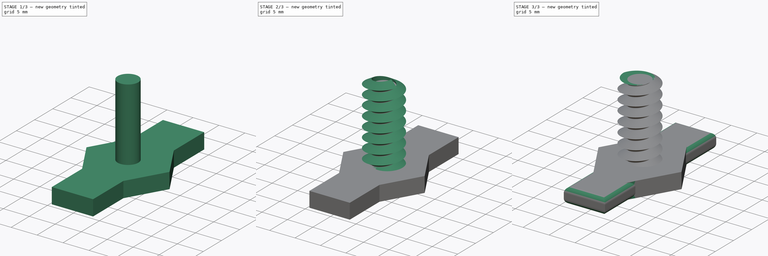
[diagram: build sequence overview — one tinted view per stage of 3, left to right]
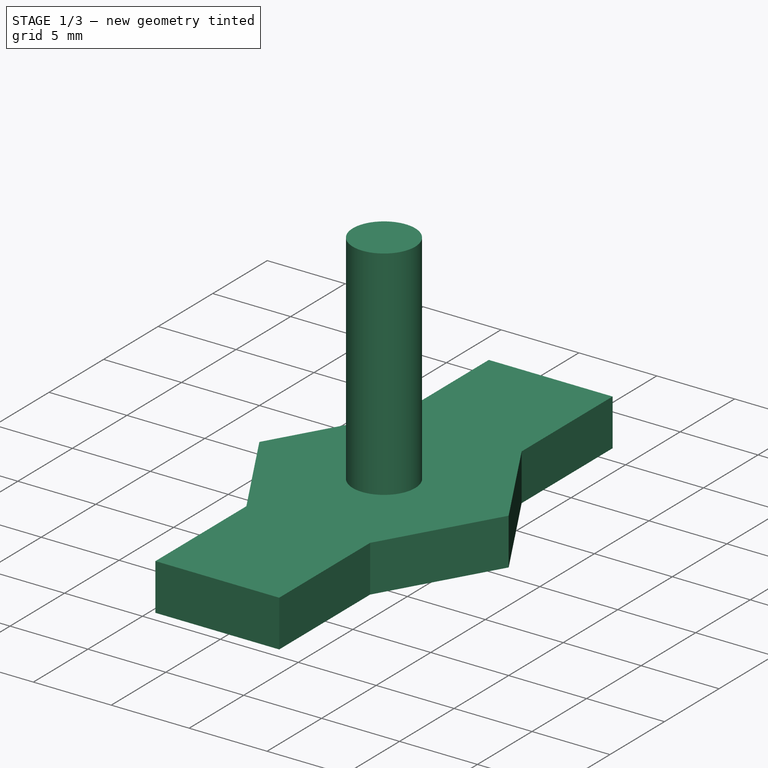
[diagram: stage 1 of 3 — iso view after this stage's code; geometry added in this stage tinted green]
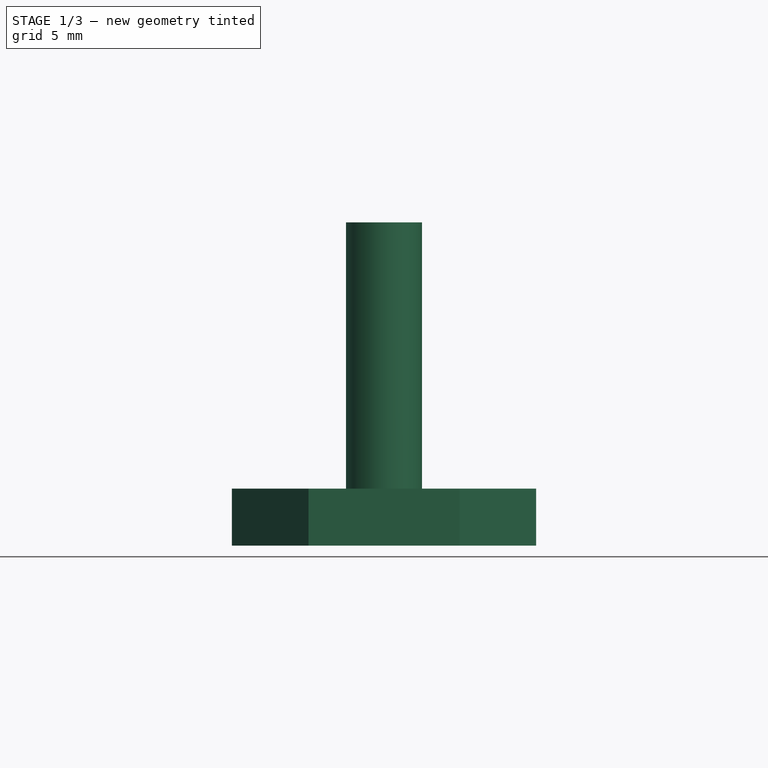
[diagram: stage 1 of 3 — front view after this stage's code; geometry added in this stage tinted green]
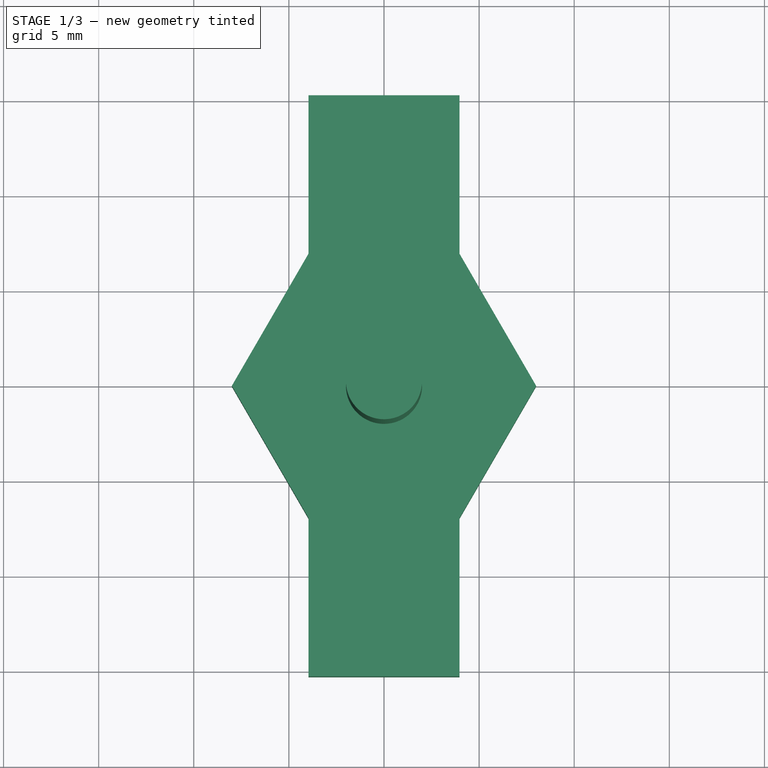
[diagram: stage 1 of 3 — top view after this stage's code; geometry added in this stage tinted green]
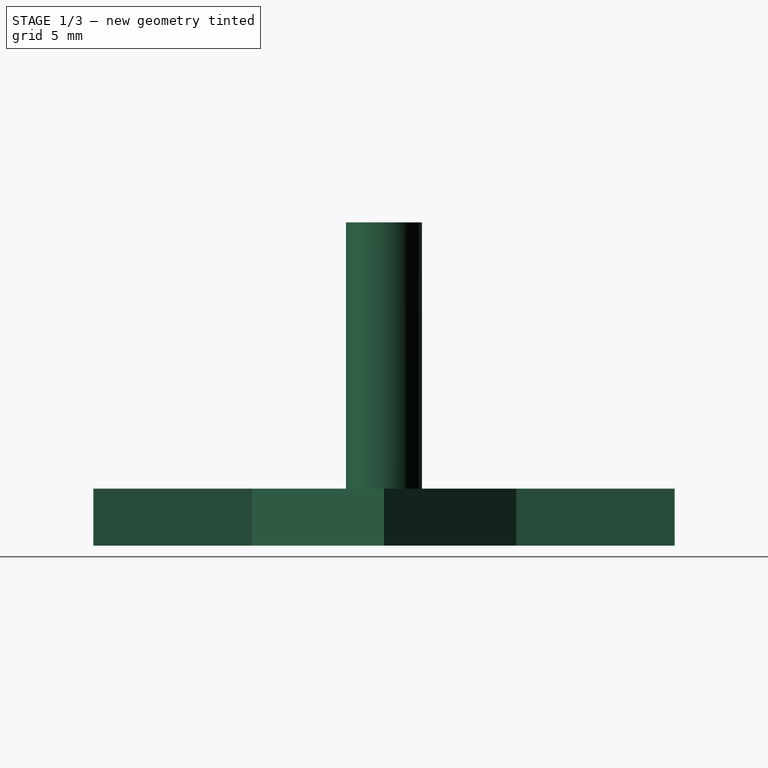
[diagram: stage 1 of 3 — right view after this stage's code; geometry added in this stage tinted green]
FCSTD DOCUMENT  (FreeCAD 0.20R29177 (Git))
Label: screw2.5x1.9
License: All rights reserved
LicenseURL: http://en.wikipedia.org/wiki/All_rights_reserved
objects: Sketcher::SketchObject×4, PartDesign::Pad×2, Spreadsheet::Sheet×1, PartDesign::AdditiveHelix×1, PartDesign::Groove×1, PartDesign::Fillet×1, PartDesign::Body×1
note: 15 computed .brp shape members not serialized (recipe doc carries the construction recipe); baked Part::Feature solids carry a one-line shape summary decoded from their .brp

FEATURE [Sketcher::SketchObject] Sketch
  FullyConstrained = true
  MapMode = 5
  Support = -> [XY_Plane]
  expr: Constraints[1] = Spreadsheet.r
  sketch-geometry (1):
    g0: Circle CenterX=0 CenterY=0 CenterZ=0 NormalX=0 NormalY=0 NormalZ=1 AngleXU=0 Radius=2
  constraints (2):
    c: Coincident(g0,g-1)
    c: Radius(g0) = 2
FEATURE [PartDesign::Pad] Pad
  Direction = (0,0,1)
  Length = 17
  Length2 = 10
  Profile = -> Sketch
  ReferenceAxis = -> Sketch [N_Axis]
  Type = 0
  expr: Length = Spreadsheet.height
FEATURE [Sketcher::SketchObject] Sketch001
  FullyConstrained = false
  MapMode = 5
  Support = -> [XY_Plane]
  expr: Constraints[12] = 8mm
  sketch-geometry (11):
    g0: LineSegment StartX=3.97156 StartY=-6.94455 StartZ=0 EndX=8 EndY=0 EndZ=0
    g1: LineSegment StartX=8 StartY=0 StartZ=0 EndX=3.97156 EndY=6.94455 EndZ=0
    g2: LineSegment StartX=-3.97156 StartY=6.94455 StartZ=0 EndX=-8 EndY=0 EndZ=0
    g3: LineSegment StartX=-8 StartY=0 StartZ=0 EndX=-3.97156 EndY=-6.94455 EndZ=0
    g4: Circle CenterX=0 CenterY=0 CenterZ=0 NormalX=0 NormalY=0 NormalZ=1 AngleXU=0 Radius=8
    g5: LineSegment StartX=3.97156 StartY=-6.94455 StartZ=0 EndX=3.97156 EndY=-15.2778 EndZ=0
    g6: LineSegment StartX=3.97156 StartY=-15.2778 StartZ=0 EndX=-3.97156 EndY=-15.2778 EndZ=0
    g7: LineSegment StartX=-3.97156 StartY=-15.2778 StartZ=0 EndX=-3.97156 EndY=-6.94455 EndZ=0
    g8: LineSegment StartX=3.97156 StartY=6.94455 StartZ=0 EndX=3.97156 EndY=15.2778 EndZ=0
    g9: LineSegment StartX=3.97156 StartY=15.2778 StartZ=0 EndX=-3.97156 EndY=15.2778 EndZ=0
    g10: LineSegment StartX=-3.97156 StartY=15.2778 StartZ=0 EndX=-3.97156 EndY=6.94455 EndZ=0
  constraints (30):
    c: Coincident(g0,g1)
    c: Coincident(g2,g3)
    c: Equal(g0,g1)
    c: Equal(g0,g2)
    c: Equal(g0,g3)
    c: PointOnObject(g0,g4)
    c: PointOnObject(g1,g4)
    c: PointOnObject(g2,g4)
    c: PointOnObject(g2,g4)
    c: PointOnObject(g3,g4)
    c: PointOnObject(g0,g4)
    c: Coincident(g4,g-1)
    c: Radius(g4) = 8
    c: Coincident(g5,g6)
    c: Coincident(g6,g7)
    c: Horizontal(g6)
    c: Vertical(g5)
    c: Vertical(g7)
    c: Coincident(g7,g3)
    c: Coincident(g8,g9)
    c: Coincident(g9,g10)
    c: Horizontal(g9)
    c: Vertical(g8)
    c: Vertical(g10)
    c: PointOnObject(g0,g-1)
    c: Coincident(g8,g1)
    c: Coincident(g10,g2)
    c: Coincident(g5,g0)
    c: PointOnObject(g2,g-1)
    c: Equal(g8,g5)
FEATURE [PartDesign::Pad] Pad001
  BaseFeature = -> Pad
  Direction = (0,0,1)
  Length = 3
  Length2 = 10
  Profile = -> Sketch001
  ReferenceAxis = -> Sketch001 [N_Axis]
  Type = 0
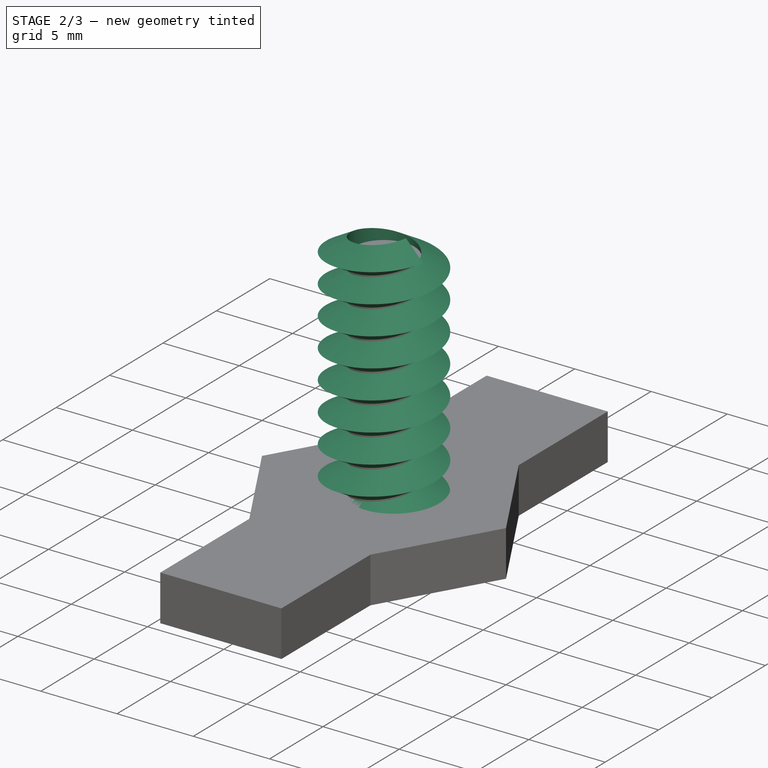
[diagram: stage 2 of 3 — iso view after this stage's code; geometry added in this stage tinted green]
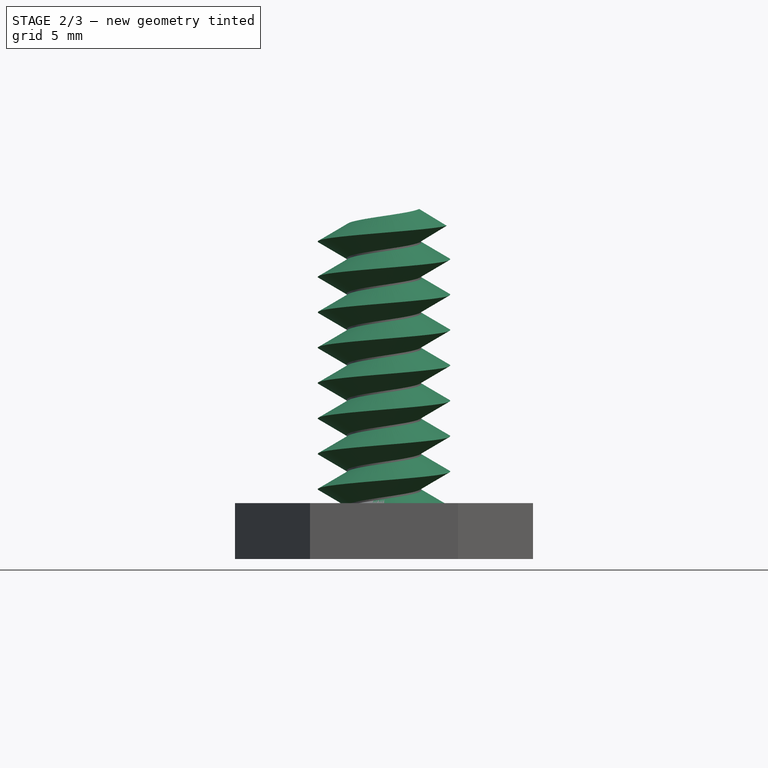
[diagram: stage 2 of 3 — front view after this stage's code; geometry added in this stage tinted green]
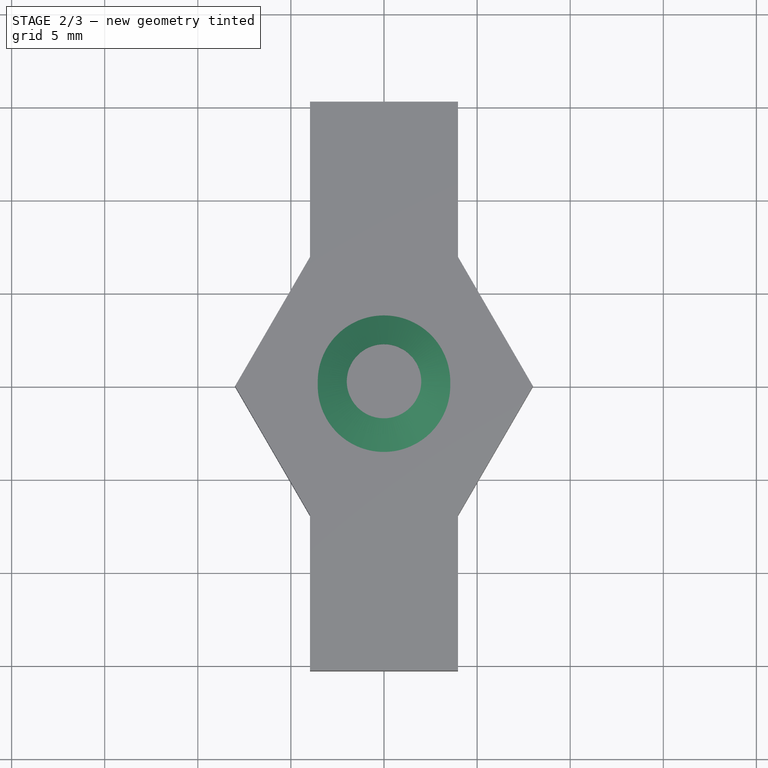
[diagram: stage 2 of 3 — top view after this stage's code; geometry added in this stage tinted green]
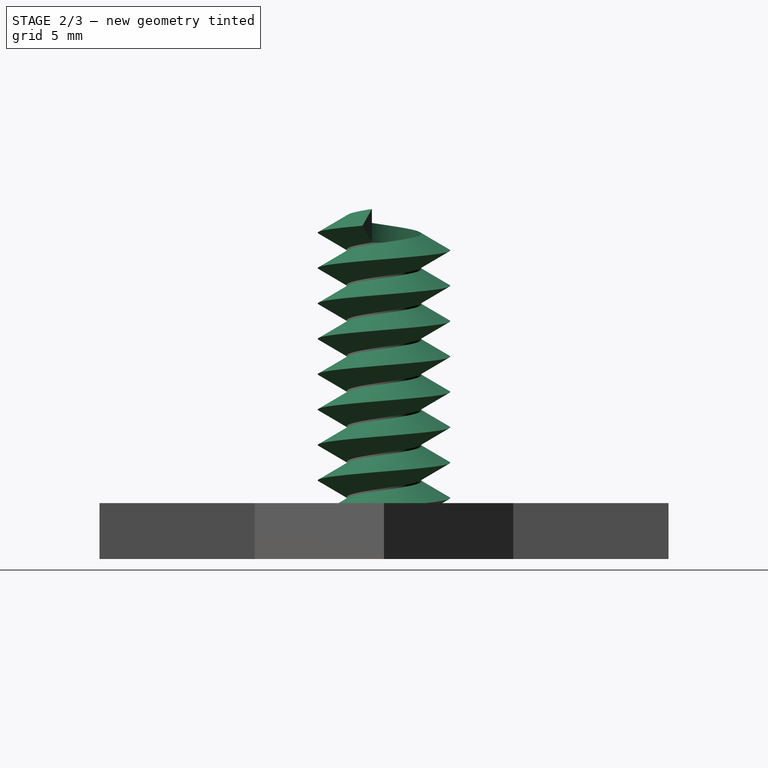
[diagram: stage 2 of 3 — right view after this stage's code; geometry added in this stage tinted green]
FEATURE [Sketcher::SketchObject] Sketch002  label="Sketch002Teeth"
  AttachmentOffset = pos=(0,0.9,0) rot=(0,0,1;0rad)
  FullyConstrained = true
  MapMode = 5
  Placement = pos=(0,-2e-16,0.9) rot=(1,0,0;1.5708rad)
  Support = -> [XZ_Plane]
  expr: .AttachmentOffset.Base.y = Spreadsheet.threadTriLen / 2
  expr: Constraints[6] = Spreadsheet.threadTriLen
  expr: Constraints[7] = Spreadsheet.threadTriLen / 2
  expr: Constraints[8] = Spreadsheet.r
  sketch-geometry (3):
    g0: LineSegment StartX=3.55885 StartY=1e-16 StartZ=0 EndX=2 EndY=0.9 EndZ=0
    g1: LineSegment StartX=2 StartY=0.9 StartZ=0 EndX=2 EndY=-0.9 EndZ=0
    g2: LineSegment StartX=2 StartY=-0.9 StartZ=0 EndX=3.55885 EndY=1e-16 EndZ=0
  constraints (9):
    c: Coincident(g1,g0)
    c: Coincident(g2,g1)
    c: Coincident(g2,g0)
    c: Equal(g1,g0)
    c: Equal(g1,g2)
    c: Parallel(g1,g-2)
    c: Distance(g0) = 1.8
    c: DistanceY(g-1,g0) = 0.9
    c: DistanceX(g-1,g0) = 2
FEATURE [Spreadsheet::Sheet] Spreadsheet
  cells = A2=threadTriLen; B2(threadTriLen)=1.8; A3=height; B3(height)=17; C3=was 14, too short for washing room, changed to 17; A4=r; B4(r)=2; C4=from 2.5 to 2.2 to 2.1; A5=pitch; B5(pitch)==B2 + 0.1
FEATURE [PartDesign::AdditiveHelix] AdditiveHelix
  Angle = 0
  Axis = (0,-2e-16,1)
  Base = (0,-2e-16,0.9)
  BaseFeature = -> Pad001
  Growth = 0
  HasBeenEdited = true
  Height = 17
  LeftHanded = false
  Mode = 0
  Outside = false
  Pitch = 1.9
  Profile = -> Sketch002
  ReferenceAxis = -> Sketch002 [V_Axis]
  Turns = 8.94737
  expr: Height = Spreadsheet.height
  expr: Pitch = Spreadsheet.pitch
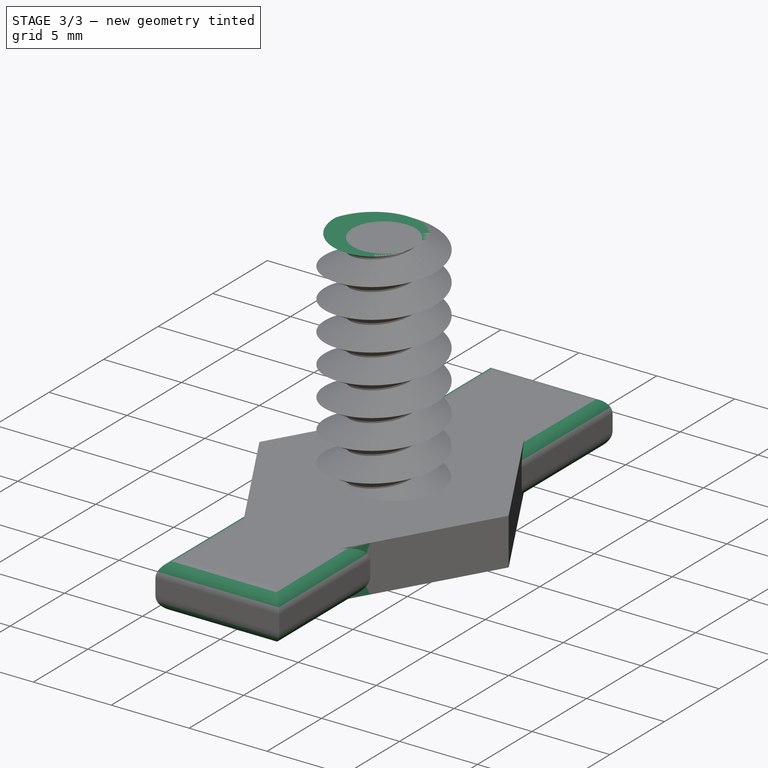
[diagram: stage 3 of 3 — iso view after this stage's code; geometry added in this stage tinted green]
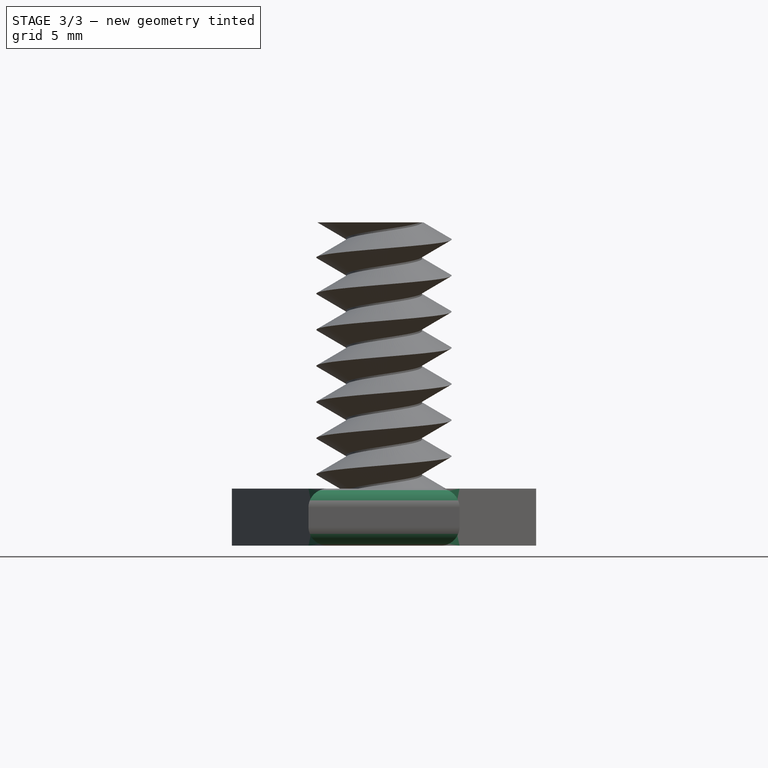
[diagram: stage 3 of 3 — front view after this stage's code; geometry added in this stage tinted green]
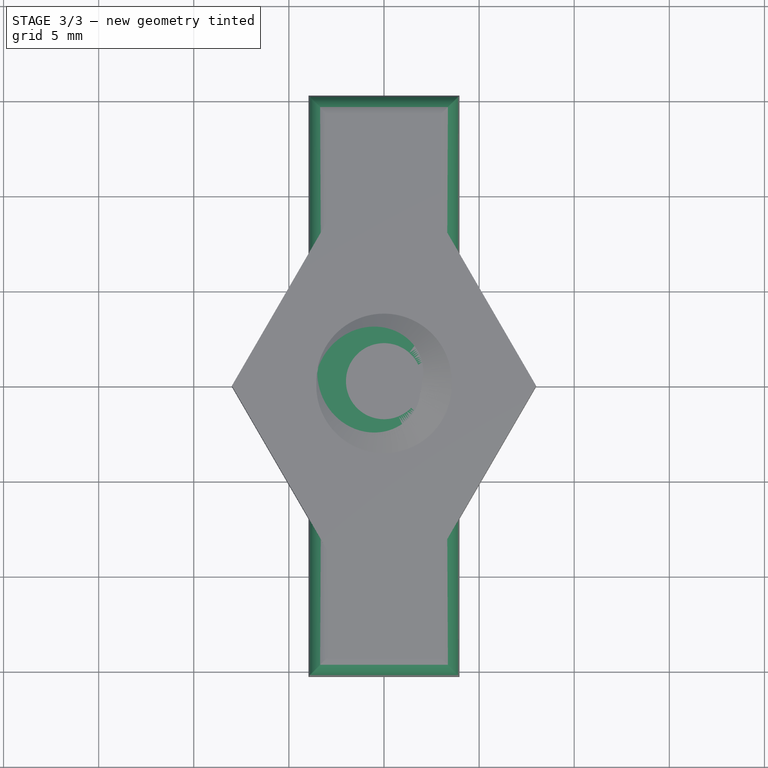
[diagram: stage 3 of 3 — top view after this stage's code; geometry added in this stage tinted green]
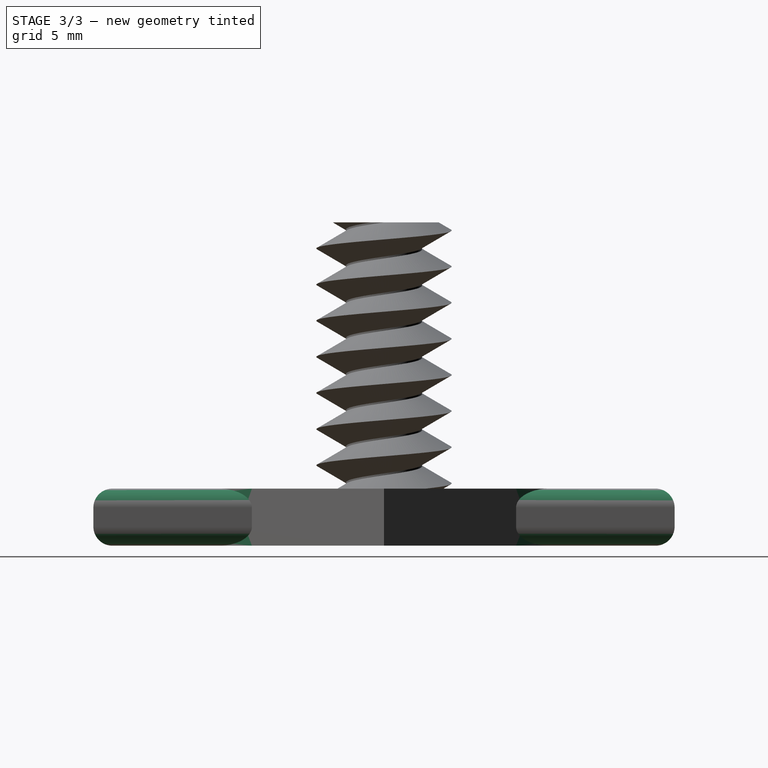
[diagram: stage 3 of 3 — right view after this stage's code; geometry added in this stage tinted green]
FEATURE [Sketcher::SketchObject] Sketch003  label="Sketch003TopCut"
  FullyConstrained = true
  MapMode = 5
  Placement = pos=(0,0,0) rot=(0.57735,0.57735,0.57735;2.0944rad)
  Support = -> [YZ_Plane]
  expr: Constraints[10] = Spreadsheet.height
  expr: Constraints[9] = Spreadsheet.r + 3
  sketch-geometry (4):
    g0: LineSegment StartX=0 StartY=20 StartZ=0 EndX=5 EndY=20 EndZ=0
    g1: LineSegment StartX=5 StartY=20 StartZ=0 EndX=5 EndY=17 EndZ=0
    g2: LineSegment StartX=5 StartY=17 StartZ=0 EndX=0 EndY=17 EndZ=0
    g3: LineSegment StartX=0 StartY=17 StartZ=0 EndX=0 EndY=20 EndZ=0
  constraints (12):
    c: Coincident(g0,g1)
    c: Coincident(g1,g2)
    c: Coincident(g2,g3)
    c: Coincident(g3,g0)
    c: Horizontal(g0)
    c: Horizontal(g2)
    c: Vertical(g1)
    c: Vertical(g3)
    c: DistanceY(g1,g1) = 3
    c: DistanceX(g-1,g1) = 5
    c: DistanceY(g-1,g1) = 17
    c: PointOnObject(g2,g-2)
FEATURE [PartDesign::Groove] Groove
  Angle = 360
  Axis = (-2e-16,3e-16,1)
  Base = (0,0,0)
  BaseFeature = -> AdditiveHelix
  Profile = -> Sketch003
  ReferenceAxis = -> Sketch003 [V_Axis]
FEATURE [PartDesign::Fillet] Fillet
  Base = -> Groove [Edge31,Edge11,Edge22,Edge6,Edge28,Edge9,Edge18,Edge4,Edge2,Edge14,Edge7,Edge24]
  BaseFeature = -> Groove
  Radius = 1
  SupportTransform = false
  UseAllEdges = false
FEATURE [PartDesign::Body] Body
  Group = -> [Sketch,Pad,Sketch001,Pad001,Sketch002,AdditiveHelix,Sketch003,Groove,Fillet]
  Origin = -> Origin
  Tip = -> Fillet
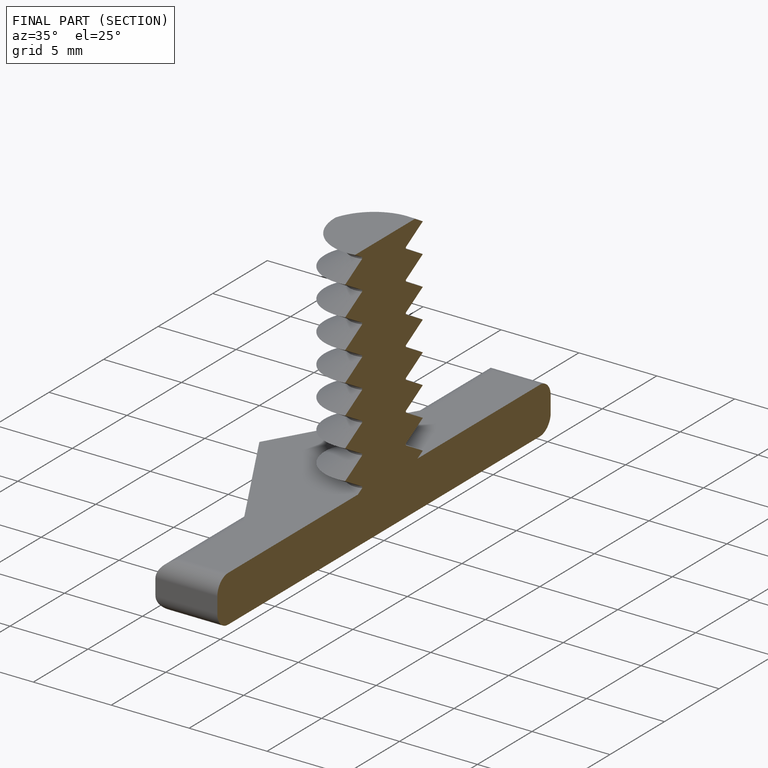
[diagram: finished part — half-section view (interior)]
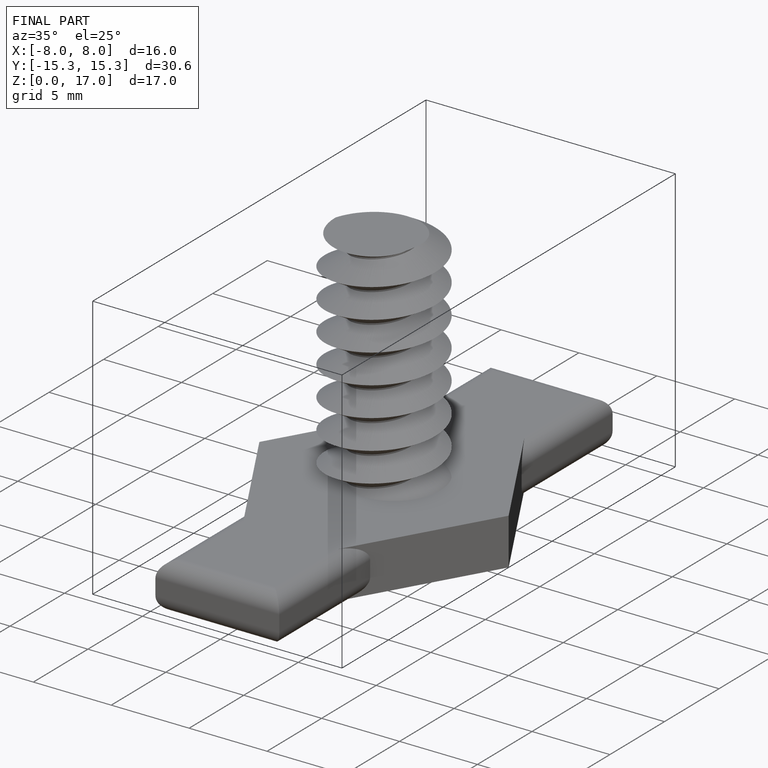
[diagram: finished part — iso view with bounding-box wireframe]
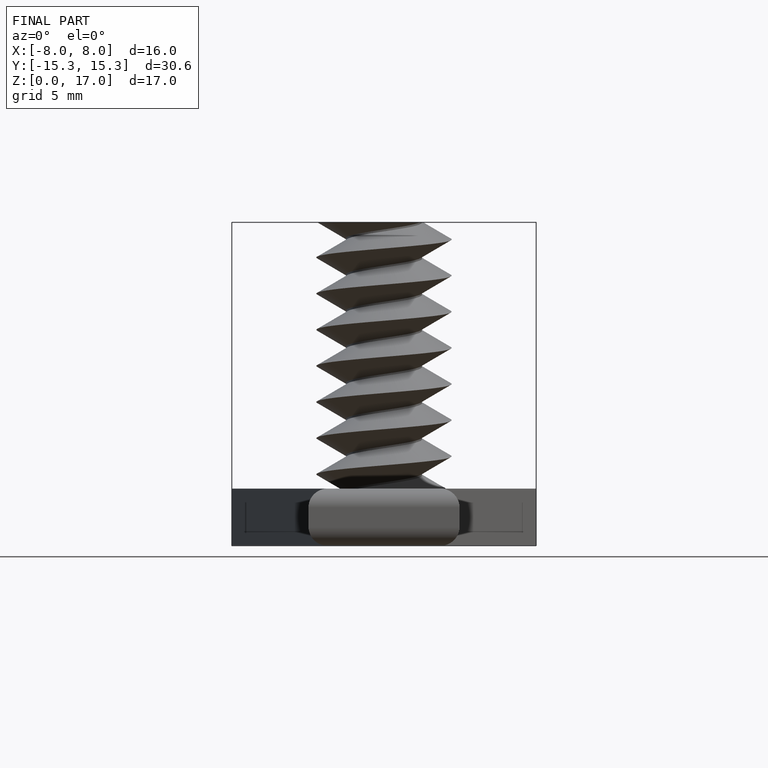
[diagram: finished part — front view with bounding-box wireframe]
